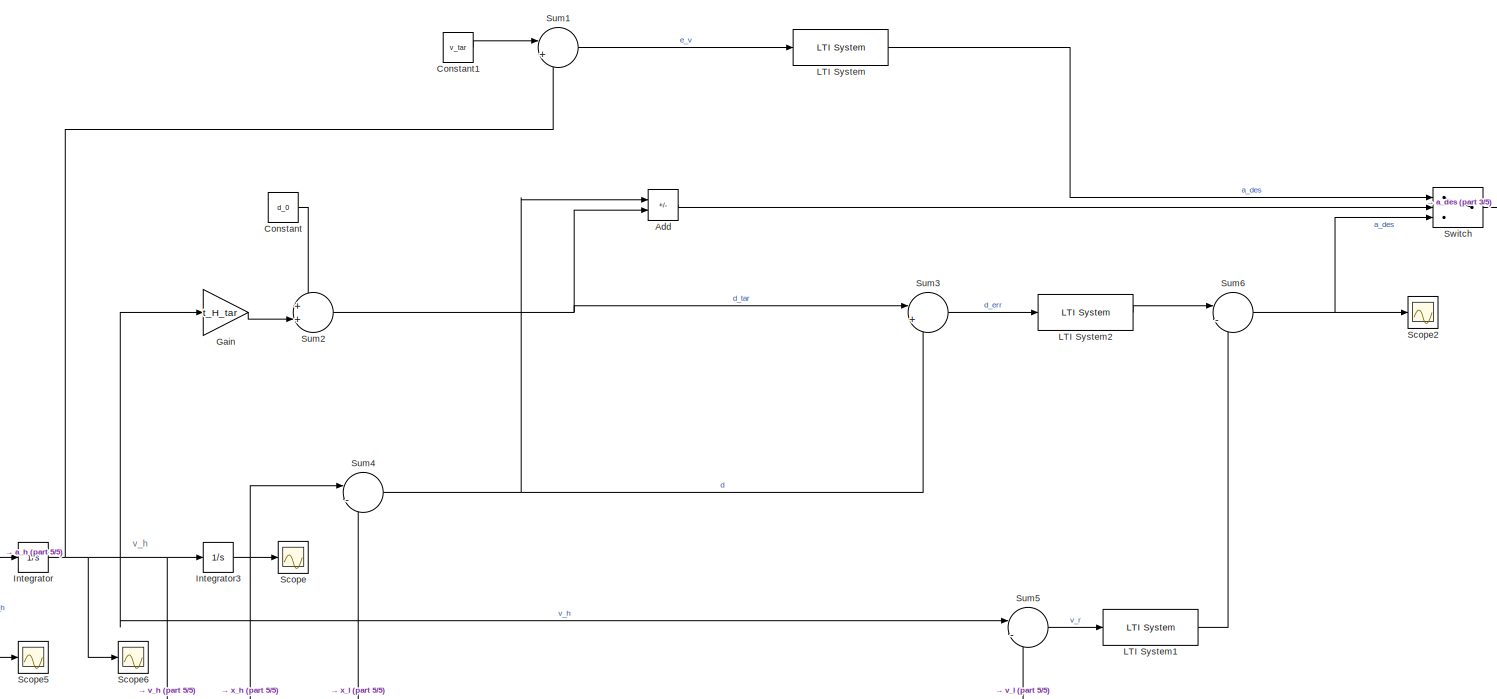
[diagram: root canvas - part 1/5, central region]
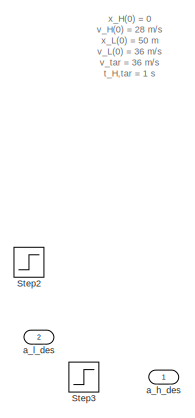
[diagram: root canvas - part 2/5, middle left region]
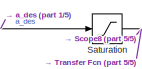
[diagram: root canvas - part 3/5, top right region]
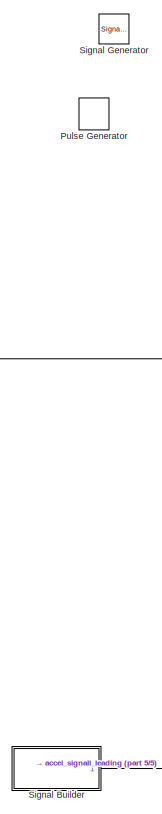
[diagram: root canvas - part 4/5, middle left region]
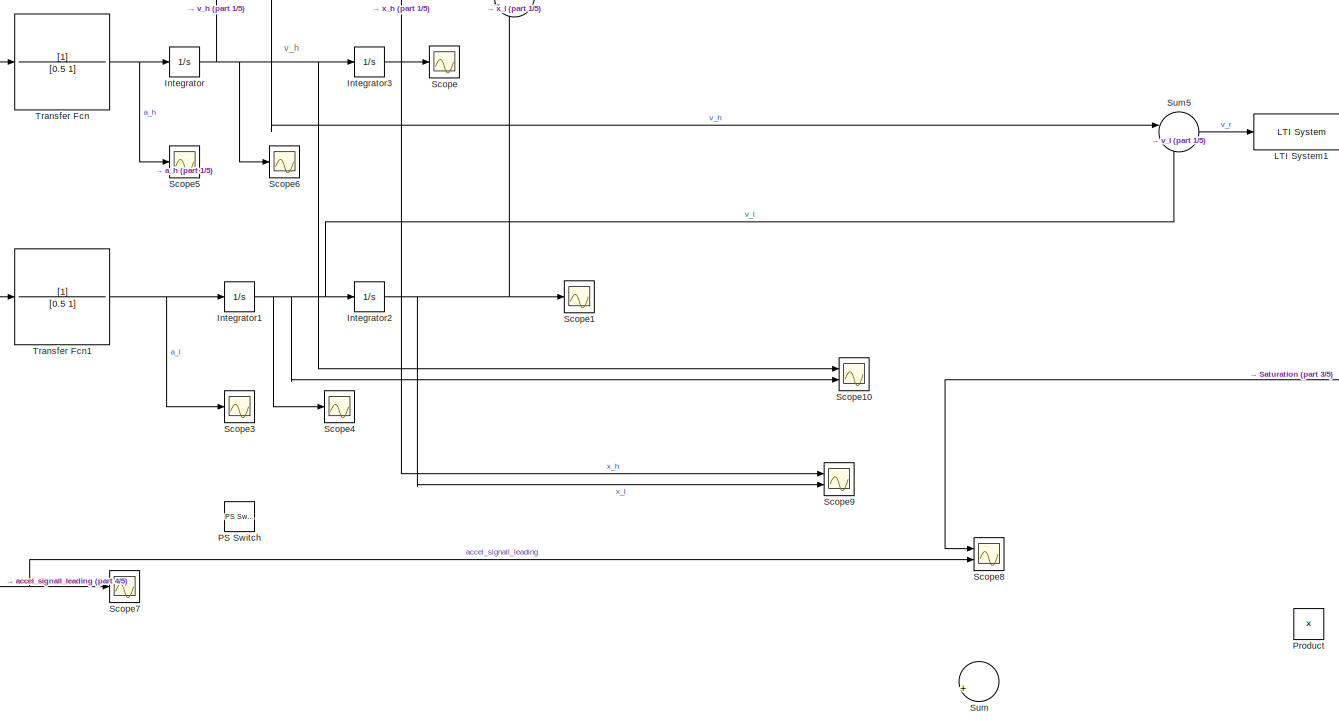
[diagram: root canvas - part 5/5, bottom center region]
MODEL slx_58a92693237b
KIND model
CONFIG AbsTol = auto
CONFIG EnableMultiTasking = off
CONFIG FixedStep = auto
CONFIG MaxStep = auto
CONFIG MinStep = auto
CONFIG RelTol = 1e-12
CONFIG SampleTimeConstraint = Unconstrained
CONFIG Solver = VariableStepAuto
CONFIG SolverName = VariableStepAuto
CONFIG StartTime = 0.0
CONFIG StopTime = 70
WORKSPACE source: MAT-file member
WORKSPACE d_tar = 20
BLOCK [Sum] Add
  IconShape = rectangular
  Inputs = +-
  Ports = [2, 1]
BLOCK [Constant] Constant
  Value = d_0
BLOCK [Constant] Constant1
  Value = v_tar
BLOCK [Gain] Gain
  Gain = t_H_tar
BLOCK [Integrator] Integrator
  InitialCondition = v_H0
  Ports = [1, 1]
BLOCK [Integrator] Integrator1
  InitialCondition = v_L0
  Ports = [1, 1]
BLOCK [Integrator] Integrator2
  InitialCondition = x_L0
  Ports = [1, 1]
BLOCK [Integrator] Integrator3
  InitialCondition = x_H0
  Ports = [1, 1]
BLOCK [Reference] LTI System  REF=cstblocks/LTI System
  Ports = [1, 1]
  SourceBlock = cstblocks/LTI System
  SourceProductBaseCode = CT
  SourceType = LTI Block
BLOCK [Reference] LTI System1  REF=cstblocks/LTI System
  Ports = [1, 1]
  SourceBlock = cstblocks/LTI System
  SourceProductBaseCode = CT
  SourceType = LTI Block
BLOCK [Reference] LTI System2  REF=cstblocks/LTI System
  Ports = [1, 1]
  SourceBlock = cstblocks/LTI System
  SourceProductBaseCode = CT
  SourceType = LTI Block
BLOCK [Reference] PS Switch  REF=fl_lib/Physical Signals/Nonlinear Operators/PS Switch
  Ports = [0, 0, 0, 0, 0, 3, 1]
  SourceBlock = fl_lib/Physical Signals/Nonlinear Operators/PS Switch
  SourceProductBaseCode = SS
  SourceType = PS Switch
BLOCK [Product] Product
  Ports = [2, 1]
BLOCK [DiscretePulseGenerator] Pulse Generator
  Period = 10
  Ports = [0, 1]
  PulseType = Time based
  PulseWidth = 5
BLOCK [Saturate] Saturation
  LowerLimit = -3
  UpperLimit = 5
BLOCK [Scope] Scope
  Floating = off
  NumInputPorts = 1
  Ports = [1]
  ScopeSpecificationString = Simulink.scopes.TimeScopeBlockCfg('CurrentConfiguration', extmgr.ConfigurationSet(extmgr.Configuration('Core','General UI',true),extmgr.Configuration('Core','Source UI',true),extmgr.Configuration('Sources','WiredSimulink',true),extmgr.Configuration('Visuals','Time Domain',true,'SerializedDisplays',{struct('MinYLimReal','-289.40886','MaxYLimReal','2604.67977','YLabelReal','','MinYLimMag',' 0.00000'...<+1370ch>
BLOCK [Scope] Scope1
  Floating = off
  NumInputPorts = 1
  Ports = [1]
  ScopeSpecificationString = Simulink.scopes.TimeScopeBlockCfg('CurrentConfiguration', extmgr.ConfigurationSet(extmgr.Configuration('Core','General UI',true),extmgr.Configuration('Core','Source UI',true),extmgr.Configuration('Sources','WiredSimulink',true,'DataLoggingVariableName','ScopeData1'),extmgr.Configuration('Visuals','Time Domain',true,'SerializedDisplays',{struct('MinYLimReal','-238.75','MaxYLimReal','2648.75','YLabe...<+1410ch>
BLOCK [Scope] Scope10
  Floating = off
  NumInputPorts = 2
  Ports = [2]
  ScopeSpecificationString = Simulink.scopes.TimeScopeBlockCfg('CurrentConfiguration', extmgr.ConfigurationSet(extmgr.Configuration('Core','General UI',true),extmgr.Configuration('Core','Source UI',true),extmgr.Configuration('Sources','WiredSimulink',true,'DataLoggingVariableName','ScopeData9'),extmgr.Configuration('Visuals','Time Domain',true,'SerializedDisplays',{struct('MinYLimReal','26.65988','MaxYLimReal','37.03779','YLa...<+1442ch>
BLOCK [Scope] Scope2
  Floating = off
  NumInputPorts = 1
  Ports = [1]
  ScopeSpecificationString = Simulink.scopes.TimeScopeBlockCfg('CurrentConfiguration', extmgr.ConfigurationSet(extmgr.Configuration('Core','General UI',true),extmgr.Configuration('Core','Source UI',true),extmgr.Configuration('Sources','WiredSimulink',true,'DataLoggingVariableName','ScopeData1'),extmgr.Configuration('Visuals','Time Domain',true,'SerializedDisplays',{struct('MinYLimReal','-4.34698','MaxYLimReal','7.52844','YLab...<+1364ch>
BLOCK [Scope] Scope3
  Floating = off
  NumInputPorts = 1
  Ports = [1]
  ScopeSpecificationString = Simulink.scopes.TimeScopeBlockCfg('CurrentConfiguration', extmgr.ConfigurationSet(extmgr.Configuration('Core','General UI',true),extmgr.Configuration('Core','Source UI',true),extmgr.Configuration('Sources','WiredSimulink',true,'DataLoggingVariableName','ScopeData2'),extmgr.Configuration('Visuals','Time Domain',true,'SerializedDisplays',{struct('MinYLimReal','-2.49768','MaxYLimReal','2.49763','YLab...<+1410ch>
BLOCK [Scope] Scope4
  Floating = off
  NumInputPorts = 1
  Ports = [1]
  ScopeSpecificationString = Simulink.scopes.TimeScopeBlockCfg('CurrentConfiguration', extmgr.ConfigurationSet(extmgr.Configuration('Core','General UI',true),extmgr.Configuration('Core','Source UI',true),extmgr.Configuration('Sources','WiredSimulink',true,'DataLoggingVariableName','ScopeData3'),extmgr.Configuration('Visuals','Time Domain',true,'SerializedDisplays',{struct('MinYLimReal','28.125','MaxYLimReal','36.875','YLabelR...<+1400ch>
BLOCK [Scope] Scope5
  Floating = off
  NumInputPorts = 1
  Ports = [1]
  ScopeSpecificationString = Simulink.scopes.TimeScopeBlockCfg('CurrentConfiguration', extmgr.ConfigurationSet(extmgr.Configuration('Core','General UI',true),extmgr.Configuration('Core','Source UI',true),extmgr.Configuration('Sources','WiredSimulink',true,'DataLoggingVariableName','ScopeData4'),extmgr.Configuration('Visuals','Time Domain',true,'SerializedDisplays',{struct('MinYLimReal','-10.61142','MaxYLimReal','7.4538','YLab...<+1408ch>
BLOCK [Scope] Scope6
  Floating = off
  NumInputPorts = 1
  Ports = [1]
  ScopeSpecificationString = Simulink.scopes.TimeScopeBlockCfg('CurrentConfiguration', extmgr.ConfigurationSet(extmgr.Configuration('Core','General UI',true),extmgr.Configuration('Core','Source UI',true),extmgr.Configuration('Sources','WiredSimulink',true,'DataLoggingVariableName','ScopeData5'),extmgr.Configuration('Visuals','Time Domain',true,'SerializedDisplays',{struct('MinYLimReal','19.10508','MaxYLimReal','37.87721','YLa...<+1416ch>
BLOCK [Scope] Scope7
  Floating = off
  NumInputPorts = 1
  Ports = [1]
  ScopeSpecificationString = Simulink.scopes.TimeScopeBlockCfg('CurrentConfiguration', extmgr.ConfigurationSet(extmgr.Configuration('Core','General UI',true),extmgr.Configuration('Core','Source UI',true),extmgr.Configuration('Sources','WiredSimulink',true,'DataLoggingVariableName','ScopeData6'),extmgr.Configuration('Visuals','Time Domain',true,'SerializedDisplays',{struct('MinYLimReal','-2.5','MaxYLimReal','2.5','YLabelReal',...<+1379ch>
BLOCK [Scope] Scope8
  Floating = off
  NumInputPorts = 2
  Ports = [2]
  ScopeSpecificationString = Simulink.scopes.TimeScopeBlockCfg('CurrentConfiguration', extmgr.ConfigurationSet(extmgr.Configuration('Core','General UI',true),extmgr.Configuration('Core','Source UI',true),extmgr.Configuration('Sources','WiredSimulink',true,'DataLoggingVariableName','ScopeData7'),extmgr.Configuration('Visuals','Time Domain',true,'SerializedDisplays',{struct('MinYLimReal','-3.875','MaxYLimReal','4.875','YLabelRe...<+1422ch>
BLOCK [Scope] Scope9
  Floating = off
  NumInputPorts = 2
  Ports = [2]
  ScopeSpecificationString = Simulink.scopes.TimeScopeBlockCfg('CurrentConfiguration', extmgr.ConfigurationSet(extmgr.Configuration('Core','General UI',true),extmgr.Configuration('Core','Source UI',true),extmgr.Configuration('Sources','WiredSimulink',true,'DataLoggingVariableName','ScopeData8'),extmgr.Configuration('Visuals','Time Domain',true,'SerializedDisplays',{struct('MinYLimReal','-295.00000','MaxYLimReal','2655.00000',...<+1463ch>
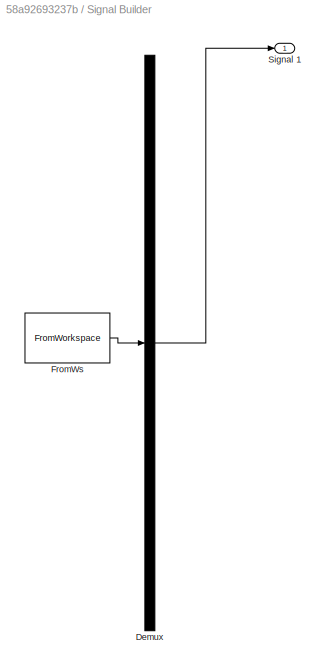
BLOCK [SubSystem] Signal Builder
  ClipboardFcn = sigbuilder_block('clipboard');
  CloseFcn = sigbuilder_block('close');
  ContinueFcn = sigbuilder_block('continue');
  CopyFcn = sigbuilder_block('copy');
  DeleteFcn = sigbuilder_block('delete');
  LoadFcn = sigbuilder_block('load');
  MaskHideContents = on
  ModelCloseFcn = sigbuilder_block('modelClose');
  NameChangeFcn = sigbuilder_block('namechange');
  OpenFcn = sigbuilder_block('open',[553.5 167.25 843.75 498.75 ]);
  PauseFcn = sigbuilder_block('pause');
  Ports = [0, 1]
  PreSaveFcn = sigbuilder_block('preSave');
  RequestExecContextInheritance = off
  StartFcn = sigbuilder_block('start');
  StopFcn = sigbuilder_block('stop');
  Tag = STV Subsys
BLOCK [Demux] Signal Builder/Demux
  DisplayOption = none
  Outputs = 1
  Ports = [1, 1]
  Tag = STV Demux
BLOCK [FromWorkspace] Signal Builder/FromWs
  Tag = STV FromWs
  VariableName = tuvar
BLOCK [Outport] Signal Builder/Signal 1
  Tag = STV Outport
BLOCK [SignalGenerator] Signal Generator
  Ports = [0, 1]
  Units = rad/sec
BLOCK [Step] Step2
  After = 2
  SampleTime = 0
  Time = 40
BLOCK [Step] Step3
  After = -2
  SampleTime = 0
  Time = 43.5
BLOCK [Sum] Sum
  Inputs = |+-
  Ports = [2, 1]
BLOCK [Sum] Sum1
  Inputs = |+-
  Ports = [2, 1]
BLOCK [Sum] Sum2
  Inputs = ++|
  Ports = [2, 1]
BLOCK [Sum] Sum3
  Inputs = |+-
  Ports = [2, 1]
BLOCK [Sum] Sum4
  Inputs = |-+
  Ports = [2, 1]
BLOCK [Sum] Sum5
  Inputs = |-+
  Ports = [2, 1]
BLOCK [Sum] Sum6
  Inputs = |-+
  Ports = [2, 1]
BLOCK [Switch] Switch
  InputSameDT = off
  SaturateOnIntegerOverflow = off
BLOCK [TransferFcn] Transfer Fcn
  Denominator = [0.5 1]
BLOCK [TransferFcn] Transfer Fcn1
  Denominator = [0.5 1]
BLOCK [Inport] a_h_des
BLOCK [Inport] a_l_des
  Port = 2
ANNOTATION (root): x_H(0) = 0 v_H(0) = 28 m/s x_L(0) = 50 m v_L(0) = 36 m/s v_tar = 36 m/s t_H,tar = 1 s d_0 = 8 m K_v = 0.5 K_d,der = 0.2 K_v,r = 0.4 max a_des = 5 m/s^2 min a_des = -3 m/s^2
ANNOTATION (root): v_h
LINE Add:1 -> Switch:2
LINE Constant1:1 -> Sum1:1
LINE Constant:1 -> Sum2:1
LINE Gain:1 -> Sum2:2
NET Integrator1:1 -> Integrator2:1, Scope10:2, Scope4:1, Sum5:2
NET Integrator2:1 -> Scope1:1, Scope9:2, Sum4:2
NET Integrator3:1 -> Scope9:1, Scope:1, Sum4:1
NET Integrator:1 -> Gain:1, Integrator3:1, Scope10:1, Scope6:1, Sum1:2, Sum5:1
LINE LTI System1:1 -> Sum6:2
LINE LTI System2:1 -> Sum6:1
LINE LTI System:1 -> Switch:1
NET Saturation:1 -> Scope8:1, Transfer Fcn:1
NET Signal Builder:1 -> Scope7:1, Scope8:2, Transfer Fcn1:1
LINE Sum1:1 -> LTI System:1
NET Sum2:1 -> Add:2, Sum3:1
LINE Sum3:1 -> LTI System2:1
NET Sum4:1 -> Add:1, Sum3:2
LINE Sum5:1 -> LTI System1:1
NET Sum6:1 -> Scope2:1, Switch:3
LINE Switch:1 -> Saturation:1
NET Transfer Fcn1:1 -> Integrator1:1, Scope3:1
NET Transfer Fcn:1 -> Integrator:1, Scope5:1
note: NET lines group one-source signal fan-out (src -> all destinations, sorted); 1:1 wires keep LINE
